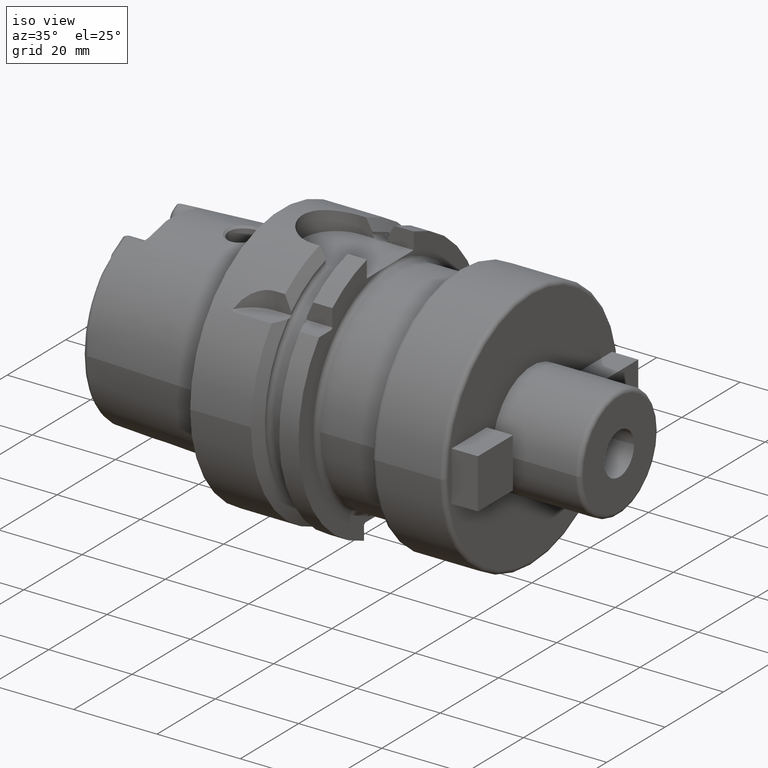
[diagram: clean part render]
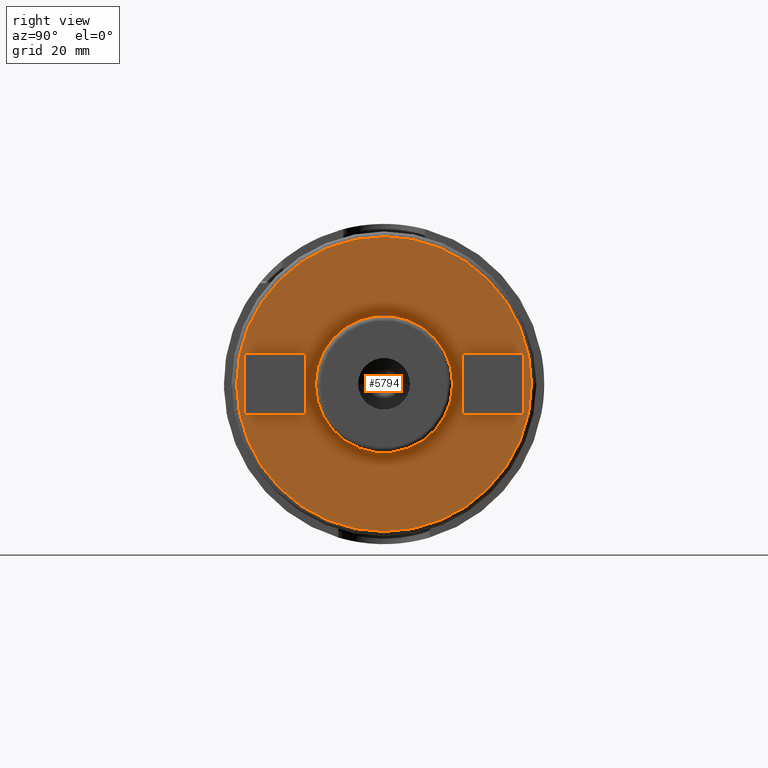
[diagram: tour spotlight — one face highlighted and labeled with its STEP entity id]
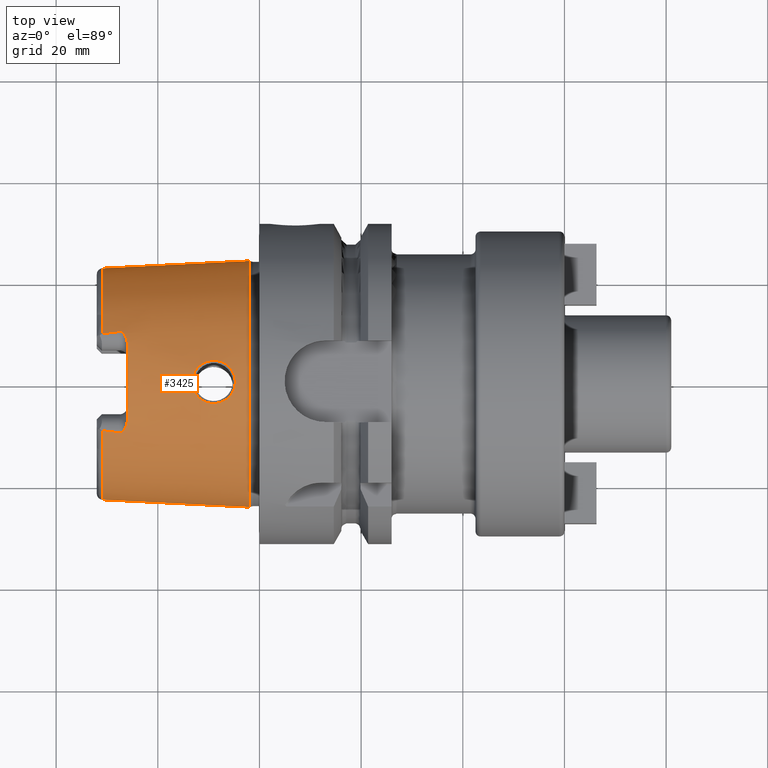
[diagram: tour spotlight — one face highlighted and labeled with its STEP entity id]
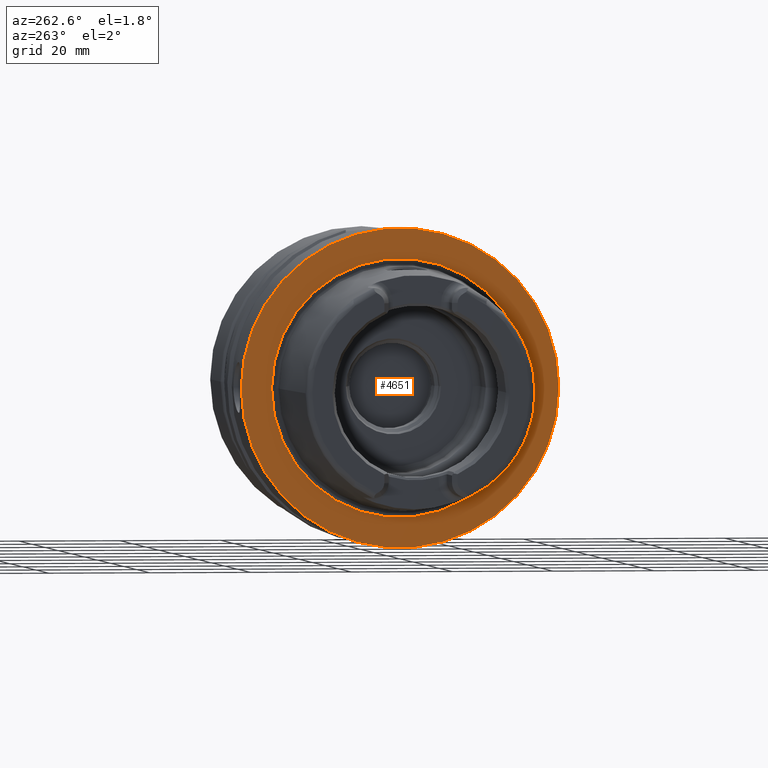
[diagram: tour spotlight — one face highlighted and labeled with its STEP entity id]
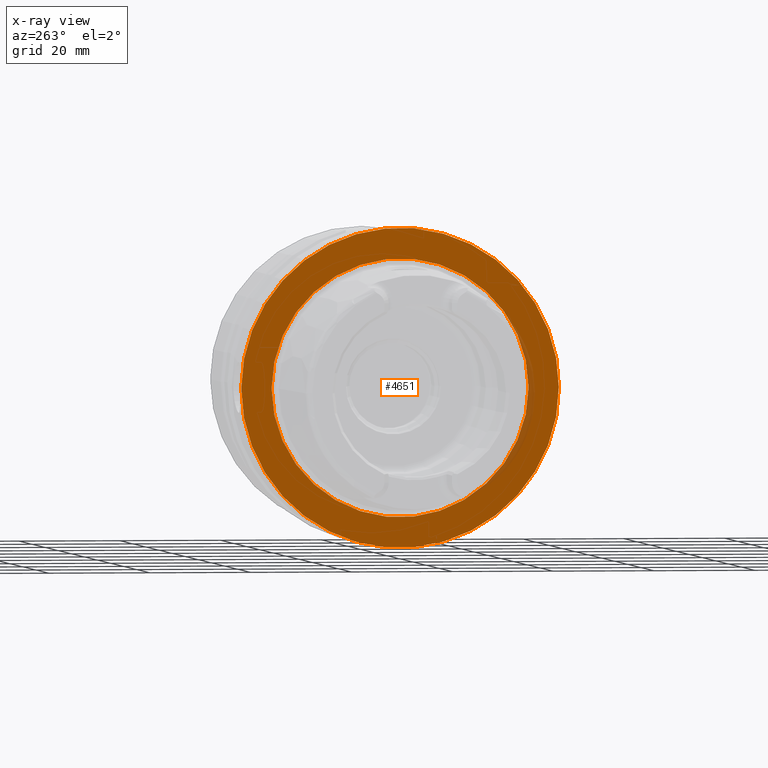
[diagram: x-ray of the same camera — body ghosted, this tour face saturated]
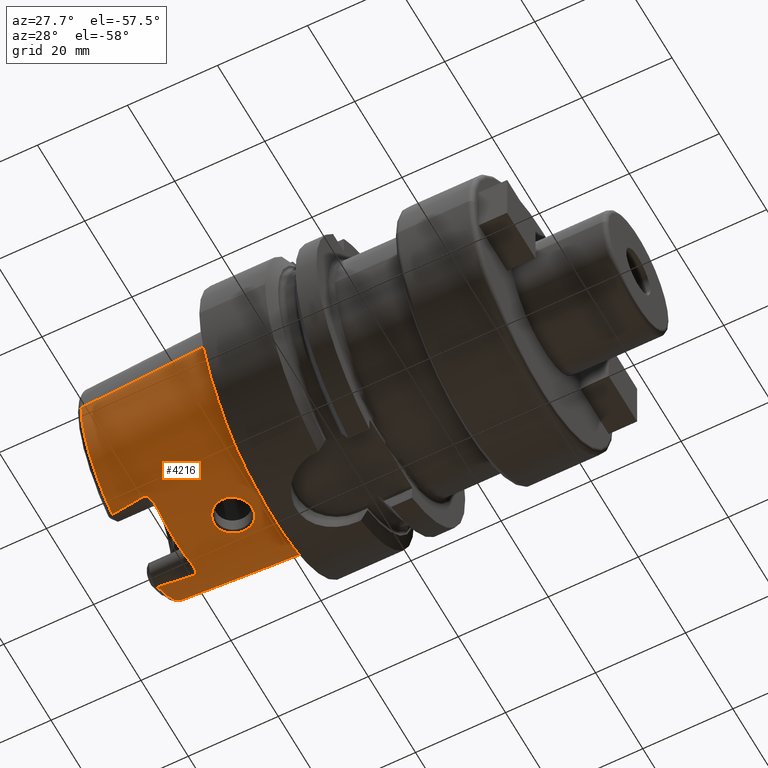
[diagram: tour spotlight — one face highlighted and labeled with its STEP entity id]
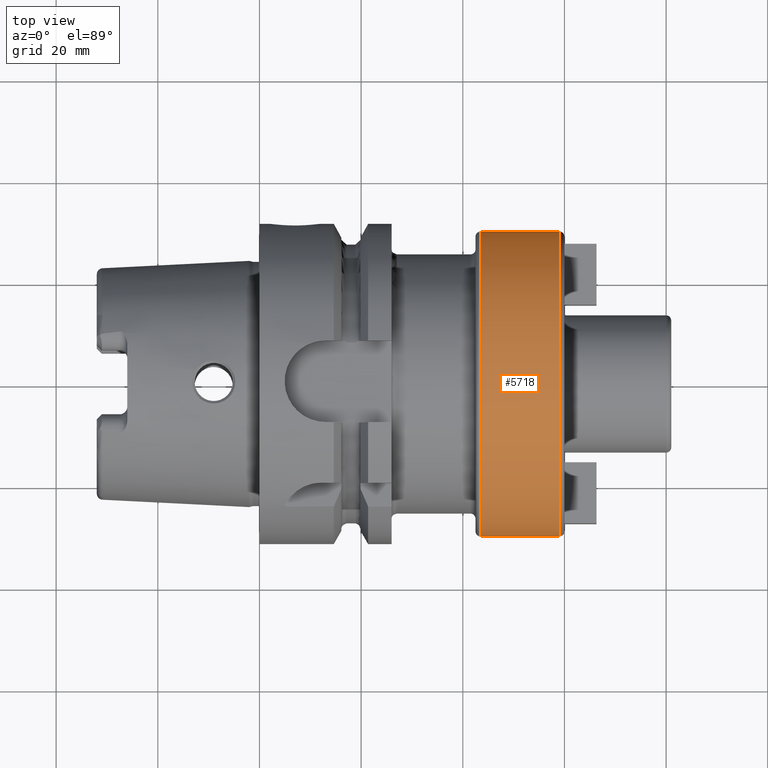
[diagram: tour spotlight — one face highlighted and labeled with its STEP entity id]
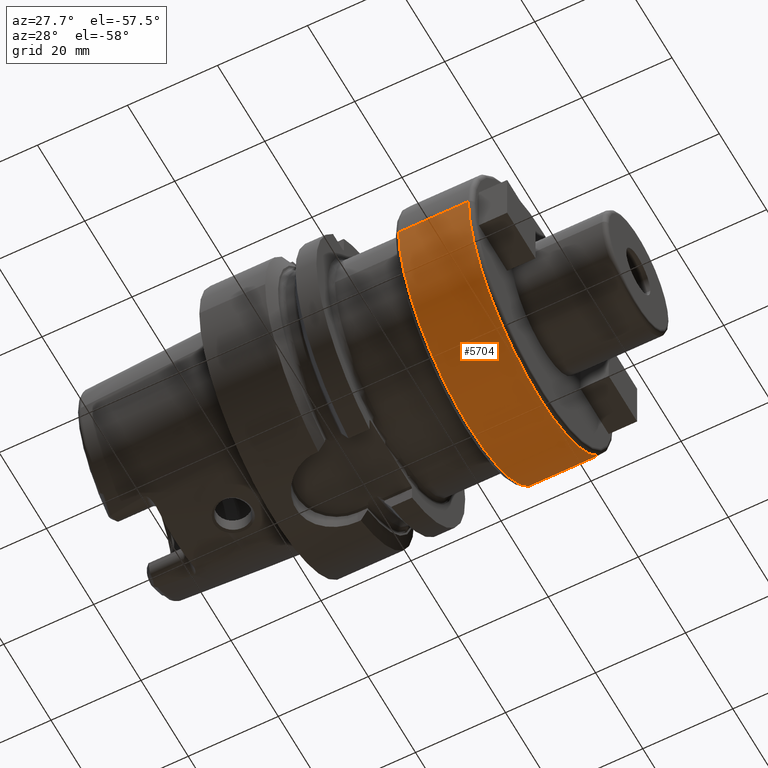
[diagram: tour spotlight — one face highlighted and labeled with its STEP entity id]
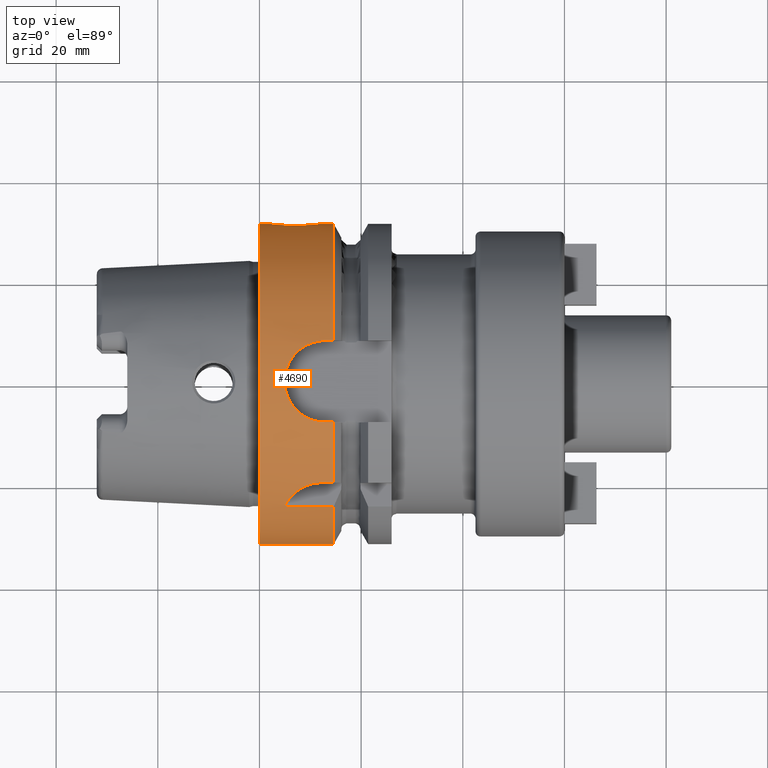
[diagram: tour spotlight — one face highlighted and labeled with its STEP entity id]
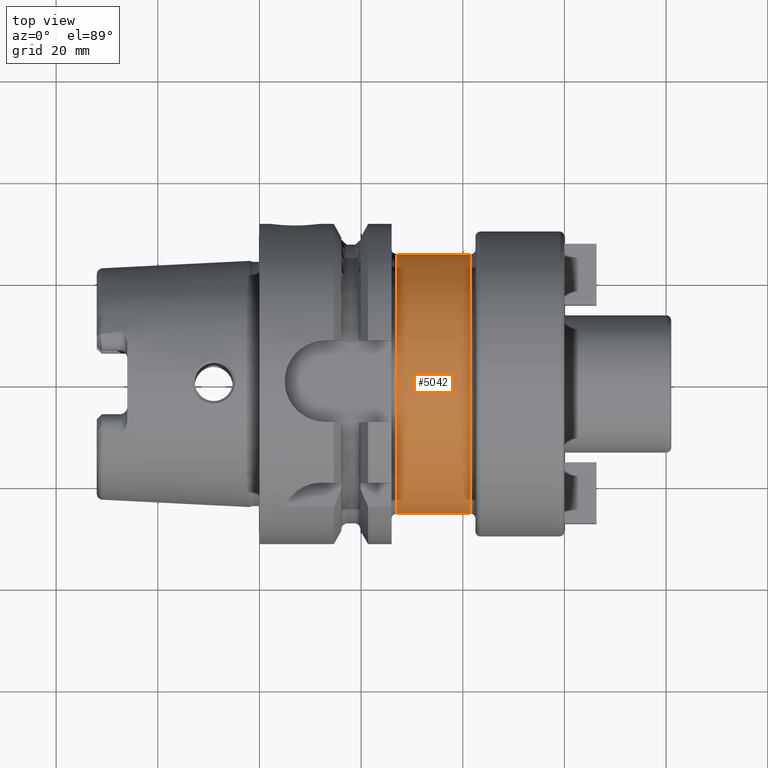
[diagram: tour spotlight — one face highlighted and labeled with its STEP entity id]
A machine part: a face-by-face anatomy tour. The part has 198 B-rep faces; the first image is the clean iso view, then the 8 largest visible faces are spotlighted one at a time (largest first), each with its STEP entity span.

Face 1 — right view, entity #5794. In plain terms, the highlighted planar face has unit normal (1, 0, 0).
Definition (entity closure, byte-faithful):
#2153=CARTESIAN_POINT('',(6.E1,0.E0,0.E0));
#2154=DIRECTION('',(1.E0,0.E0,0.E0));
#2155=DIRECTION('',(0.E0,1.E0,0.E0));
#2156=AXIS2_PLACEMENT_3D('',#2153,#2154,#2155);
#2158=CARTESIAN_POINT('',(6.E1,0.E0,0.E0));
#2159=DIRECTION('',(-1.E0,0.E0,0.E0));
#2160=DIRECTION('',(0.E0,1.E0,0.E0));
#2161=AXIS2_PLACEMENT_3D('',#2158,#2159,#2160);
#2163=CARTESIAN_POINT('',(6.E1,0.E0,0.E0));
#2164=DIRECTION('',(-1.E0,0.E0,0.E0));
#2165=DIRECTION('',(0.E0,1.E0,0.E0));
#2166=AXIS2_PLACEMENT_3D('',#2163,#2164,#2165);
#2168=CARTESIAN_POINT('',(6.E1,0.E0,0.E0));
#2169=DIRECTION('',(-1.E0,0.E0,0.E0));
#2170=DIRECTION('',(0.E0,-1.E0,0.E0));
#2171=AXIS2_PLACEMENT_3D('',#2168,#2169,#2170);
#2173=DIRECTION('',(0.E0,-1.E0,0.E0));
#2174=VECTOR('',#2173,1.2E1);
#2175=CARTESIAN_POINT('',(6.E1,2.75E1,6.E0));
#2176=LINE('',#2175,#2174);
#2177=DIRECTION('',(0.E0,0.E0,-1.E0));
#2178=VECTOR('',#2177,1.2E1);
#2179=CARTESIAN_POINT('',(6.E1,1.55E1,6.E0));
#2180=LINE('',#2179,#2178);
#2181=DIRECTION('',(0.E0,1.E0,0.E0));
#2182=VECTOR('',#2181,1.2E1);
#2183=CARTESIAN_POINT('',(6.E1,1.55E1,-6.E0));
#2184=LINE('',#2183,#2182);
#2185=DIRECTION('',(0.E0,0.E0,1.E0));
#2186=VECTOR('',#2185,1.2E1);
#2187=CARTESIAN_POINT('',(6.E1,2.75E1,-6.E0));
#2188=LINE('',#2187,#2186);
#2189=DIRECTION('',(0.E0,-1.E0,0.E0));
#2190=VECTOR('',#2189,1.2E1);
#2191=CARTESIAN_POINT('',(6.E1,-1.55E1,6.E0));
#2192=LINE('',#2191,#2190);
#2193=DIRECTION('',(0.E0,0.E0,-1.E0));
#2194=VECTOR('',#2193,1.2E1);
#2195=CARTESIAN_POINT('',(6.E1,-2.75E1,6.E0));
#2196=LINE('',#2195,#2194);
#2197=DIRECTION('',(0.E0,1.E0,0.E0));
#2198=VECTOR('',#2197,1.2E1);
#2199=CARTESIAN_POINT('',(6.E1,-2.75E1,-6.E0));
#2200=LINE('',#2199,#2198);
#2201=DIRECTION('',(0.E0,0.E0,1.E0));
#2202=VECTOR('',#2201,1.2E1);
#2203=CARTESIAN_POINT('',(6.E1,-1.55E1,-6.E0));
#2204=LINE('',#2203,#2202);
#3277=CARTESIAN_POINT('',(6.E1,1.35E1,0.E0));
#3278=CARTESIAN_POINT('',(6.E1,-1.35E1,0.E0));
#3279=VERTEX_POINT('',#3277);
#3280=VERTEX_POINT('',#3278);
#3285=CARTESIAN_POINT('',(6.E1,2.9E1,0.E0));
#3286=CARTESIAN_POINT('',(6.E1,-2.9E1,0.E0));
#3287=VERTEX_POINT('',#3285);
#3288=VERTEX_POINT('',#3286);
#3313=CARTESIAN_POINT('',(6.E1,2.75E1,6.E0));
#3314=CARTESIAN_POINT('',(6.E1,1.55E1,6.E0));
#3315=VERTEX_POINT('',#3313);
#3316=VERTEX_POINT('',#3314);
#3317=CARTESIAN_POINT('',(6.E1,1.55E1,-6.E0));
#3318=VERTEX_POINT('',#3317);
#3319=CARTESIAN_POINT('',(6.E1,2.75E1,-6.E0));
#3320=VERTEX_POINT('',#3319);
#3321=CARTESIAN_POINT('',(6.E1,-1.55E1,6.E0));
#3322=CARTESIAN_POINT('',(6.E1,-2.75E1,6.E0));
#3323=VERTEX_POINT('',#3321);
#3324=VERTEX_POINT('',#3322);
#3325=CARTESIAN_POINT('',(6.E1,-2.75E1,-6.E0));
#3326=VERTEX_POINT('',#3325);
#3327=CARTESIAN_POINT('',(6.E1,-1.55E1,-6.E0));
#3328=VERTEX_POINT('',#3327);
#5759=CARTESIAN_POINT('',(6.E1,0.E0,0.E0));
#5760=DIRECTION('',(1.E0,0.E0,0.E0));
#5761=DIRECTION('',(0.E0,-1.E0,0.E0));
#5762=AXIS2_PLACEMENT_3D('',#5759,#5760,#5761);
#5763=PLANE('',#5762);
#5764=ORIENTED_EDGE('',*,*,#5753,.T.);
#5765=ORIENTED_EDGE('',*,*,#5739,.T.);
#5766=EDGE_LOOP('',(#5764,#5765));
#5767=FACE_OUTER_BOUND('',#5766,.F.);
#5769=ORIENTED_EDGE('',*,*,#5768,.T.);
#5771=ORIENTED_EDGE('',*,*,#5770,.F.);
#5772=EDGE_LOOP('',(#5769,#5771));
#5773=FACE_BOUND('',#5772,.F.);
#5775=ORIENTED_EDGE('',*,*,#5774,.T.);
#5777=ORIENTED_EDGE('',*,*,#5776,.T.);
#5779=ORIENTED_EDGE('',*,*,#5778,.T.);
#5781=ORIENTED_EDGE('',*,*,#5780,.T.);
#5782=EDGE_LOOP('',(#5775,#5777,#5779,#5781));
#5783=FACE_BOUND('',#5782,.F.);
#5785=ORIENTED_EDGE('',*,*,#5784,.T.);
#5787=ORIENTED_EDGE('',*,*,#5786,.T.);
#5789=ORIENTED_EDGE('',*,*,#5788,.T.);
#5791=ORIENTED_EDGE('',*,*,#5790,.T.);
#5792=EDGE_LOOP('',(#5785,#5787,#5789,#5791));
#5793=FACE_BOUND('',#5792,.F.);
#5794=ADVANCED_FACE('',(#5767,#5773,#5783,#5793),#5763,.T.);
#2157=CIRCLE('',#2156,1.35E1);
#2162=CIRCLE('',#2161,1.35E1);
#2167=CIRCLE('',#2166,2.9E1);
#2172=CIRCLE('',#2171,2.9E1);
#5739=EDGE_CURVE('',#3288,#3287,#2172,.T.);
#5753=EDGE_CURVE('',#3287,#3288,#2167,.T.);
#5768=EDGE_CURVE('',#3279,#3280,#2157,.T.);
#5770=EDGE_CURVE('',#3279,#3280,#2162,.T.);
#5774=EDGE_CURVE('',#3315,#3316,#2176,.T.);
#5776=EDGE_CURVE('',#3316,#3318,#2180,.T.);
#5778=EDGE_CURVE('',#3318,#3320,#2184,.T.);
#5780=EDGE_CURVE('',#3320,#3315,#2188,.T.);
#5784=EDGE_CURVE('',#3323,#3324,#2192,.T.);
#5786=EDGE_CURVE('',#3324,#3326,#2196,.T.);
#5788=EDGE_CURVE('',#3326,#3328,#2200,.T.);
#5790=EDGE_CURVE('',#3328,#3323,#2204,.T.);

Face 2 — top view, entity #3425. In plain terms, the highlighted conical surface has half-angle 2.868 deg.
Definition (entity closure, byte-faithful):
#2=CARTESIAN_POINT('',(-3.086004306431E1,-9.562027931336E0,2.067E1));
#3=CARTESIAN_POINT('',(-3.049253157278E1,-9.605880711653E0,2.067E1));
#4=CARTESIAN_POINT('',(-2.975362396220E1,-9.693552821268E0,2.067E1));
#5=CARTESIAN_POINT('',(-2.863363692789E1,-9.824971306479E0,2.067E1));
#6=CARTESIAN_POINT('',(-2.787917629619E1,-9.912538799101E0,2.067E1));
#7=CARTESIAN_POINT('',(-2.75E1,-9.956312881929E0,2.067E1));
#9=CARTESIAN_POINT('',(-2.6E1,0.E0,0.E0));
#10=DIRECTION('',(1.E0,0.E0,0.E0));
#11=DIRECTION('',(0.E0,3.233021702202E-1,9.462957818415E-1));
#12=AXIS2_PLACEMENT_3D('',#9,#10,#11);
#14=CARTESIAN_POINT('',(-2.75E1,9.956312881929E0,2.067E1));
#15=CARTESIAN_POINT('',(-2.787916500946E1,9.912540102101E0,2.067E1));
#16=CARTESIAN_POINT('',(-2.863361059702E1,9.824974374327E0,2.067E1));
#17=CARTESIAN_POINT('',(-2.975359777716E1,9.693555915617E0,2.067E1));
#18=CARTESIAN_POINT('',(-3.049252035285E1,9.605882050456E0,2.067E1));
#19=CARTESIAN_POINT('',(-3.086004306431E1,9.562027931336E0,2.067E1));
#21=CARTESIAN_POINT('',(-2.E0,0.E0,0.E0));
#22=DIRECTION('',(1.E0,0.E0,0.E0));
#23=DIRECTION('',(0.E0,1.E0,0.E0));
#24=AXIS2_PLACEMENT_3D('',#21,#22,#23);
#26=CARTESIAN_POINT('',(-1.324941786023E1,-7.219004501044E-9,2.365679941218E1));
#27=CARTESIAN_POINT('',(-1.324962652857E1,2.128419836803E-1,2.365678895818E1));
#28=CARTESIAN_POINT('',(-1.321789572653E1,6.392154004916E-1,2.365279437370E1));
#29=CARTESIAN_POINT('',(-1.306583173353E1,1.295455377947E0,2.363353567605E1));
#30=CARTESIAN_POINT('',(-1.280774848226E1,1.924363159712E0,2.360322882883E1));
#31=CARTESIAN_POINT('',(-1.245682539685E1,2.498002640667E0,2.356658532007E1));
#32=CARTESIAN_POINT('',(-1.202590717647E1,3.003748276320E0,2.352875153285E1));
#33=CARTESIAN_POINT('',(-1.151587453193E1,3.440667161266E0,2.349418467003E1));
#34=CARTESIAN_POINT('',(-1.094488701051E1,3.790928519035E0,2.346872738592E1));
#35=CARTESIAN_POINT('',(-1.032606556195E1,4.047968073685E0,2.345686676513E1));
#36=CARTESIAN_POINT('',(-9.674487886290E0,4.205448144478E0,2.346208039452E1));
#37=CARTESIAN_POINT('',(-9.005382482159E0,4.259666064034E0,2.348629251751E1));
#38=CARTESIAN_POINT('',(-8.334406518885E0,4.208654245636E0,2.352972397238E1));
#39=CARTESIAN_POINT('',(-7.678583145358E0,4.052835118832E0,2.359064506703E1));
#40=CARTESIAN_POINT('',(-7.054746219975E0,3.795297178824E0,2.366546684138E1));
#41=CARTESIAN_POINT('',(-6.478384090661E0,3.441929617339E0,2.374909717224E1));
#42=CARTESIAN_POINT('',(-5.963720829785E0,2.998888105398E0,2.383556837714E1));
#43=CARTESIAN_POINT('',(-5.531697254110E0,2.487245477785E0,2.391660020727E1));
#44=CARTESIAN_POINT('',(-5.183622696567E0,1.910877761534E0,2.398748891792E1));
#45=CARTESIAN_POINT('',(-4.930520871648E0,1.285429316774E0,2.404215083473E1));
#46=CARTESIAN_POINT('',(-4.781592632661E0,6.352567731875E-1,2.407559904029E1));
#47=CARTESIAN_POINT('',(-4.750478792548E0,2.114683342023E-1,2.408258846670E1));
#48=CARTESIAN_POINT('',(-4.750585905229E0,7.197553449570E-9,2.408258310050E1));
#50=CARTESIAN_POINT('',(-4.750585905229E0,7.197553449570E-9,2.408258310050E1));
#51=CARTESIAN_POINT('',(-4.750395627959E0,-2.105069288240E-1,2.408259263313E1));
#52=CARTESIAN_POINT('',(-4.781309836194E0,-6.330630552620E-1,2.407566909301E1));
#53=CARTESIAN_POINT('',(-4.930068182376E0,-1.284334675678E0,2.404224817580E1));
#54=CARTESIAN_POINT('',(-5.183732271360E0,-1.911208248299E0,2.398746160179E1));
#55=CARTESIAN_POINT('',(-5.531554832014E0,-2.486758661206E0,2.391664059803E1));
#56=CARTESIAN_POINT('',(-5.960736101322E0,-2.995606004120E0,2.383611484308E1));
#57=CARTESIAN_POINT('',(-6.472413726219E0,-3.437431533938E0,2.375005151539E1));
#58=CARTESIAN_POINT('',(-7.047774921505E0,-3.791791568104E0,2.366638920783E1));
#59=CARTESIAN_POINT('',(-7.671990993959E0,-4.050736119112E0,2.359134441504E1));
#60=CARTESIAN_POINT('',(-8.327799970975E0,-4.207619640495E0,2.353024681340E1));
#61=CARTESIAN_POINT('',(-8.998662135271E0,-4.259680399888E0,2.348663216787E1));
#62=CARTESIAN_POINT('',(-9.668037445633E0,-4.206488328283E0,2.346222081393E1));
#63=CARTESIAN_POINT('',(-1.031990079178E1,-4.049961979503E0,2.345683302195E1));
#64=CARTESIAN_POINT('',(-1.093870323089E1,-3.794046262990E0,2.346853209808E1));
#65=CARTESIAN_POINT('',(-1.151051650685E1,-3.444658410973E0,2.349386945058E1));
#66=CARTESIAN_POINT('',(-1.202283712979E1,-3.007012911900E0,2.352850073603E1));
#67=CARTESIAN_POINT('',(-1.245609200384E1,-2.499248587590E0,2.356650362943E1));
#68=CARTESIAN_POINT('',(-1.280745559330E1,-1.924878595842E0,2.360319856514E1));
#69=CARTESIAN_POINT('',(-1.306526541006E1,-1.297000138509E0,2.363346880977E1));
#70=CARTESIAN_POINT('',(-1.321765204718E1,-6.412116938996E-1,2.365275767433E1));
#71=CARTESIAN_POINT('',(-1.324954460014E1,-2.136894906074E-1,2.365679306269E1));
#72=CARTESIAN_POINT('',(-1.324941786023E1,-7.219004501044E-9,2.365679941218E1));
#82=CARTESIAN_POINT('',(-2.651259296226E1,-9.27E0,2.104082891384E1));
#83=CARTESIAN_POINT('',(-2.655060528934E1,-9.340723960488E0,2.100758892059E1));
#84=CARTESIAN_POINT('',(-2.663038504623E1,-9.471838743333E0,2.094458948833E1));
#85=CARTESIAN_POINT('',(-2.676092291608E1,-9.637362323001E0,2.086163997968E1));
#86=CARTESIAN_POINT('',(-2.690131837165E1,-9.770899105642E0,2.079157611E1));
#87=CARTESIAN_POINT('',(-2.705226454993E1,-9.871852756963E0,2.073538687848E1));
#88=CARTESIAN_POINT('',(-2.720441776005E1,-9.934823835429E0,2.069678496112E1));
#89=CARTESIAN_POINT('',(-2.735189841416E1,-9.963277454574E0,2.067488149845E1));
#90=CARTESIAN_POINT('',(-2.745092740764E1,-9.961978077101E0,2.067E1));
#91=CARTESIAN_POINT('',(-2.75E1,-9.956312881929E0,2.067E1));
#93=CARTESIAN_POINT('',(-2.6E1,-7.441787718571E0,2.178189005860E1));
#94=CARTESIAN_POINT('',(-2.6E1,-7.574673232080E0,2.173648969253E1));
#95=CARTESIAN_POINT('',(-2.601813511197E1,-7.850865569829E0,2.163846841914E1));
#96=CARTESIAN_POINT('',(-2.610760114915E1,-8.297034966034E0,2.146679982993E1));
#97=CARTESIAN_POINT('',(-2.626559360892E1,-8.768529603152E0,2.127027062942E1));
#98=CARTESIAN_POINT('',(-2.642147165719E1,-9.100463955368E0,2.112051021193E1));
#99=CARTESIAN_POINT('',(-2.651259296226E1,-9.27E0,2.104082891384E1));
#185=CARTESIAN_POINT('',(-3.086004306431E1,0.E0,0.E0));
#186=DIRECTION('',(1.E0,0.E0,0.E0));
#187=DIRECTION('',(0.E0,1.E0,0.E0));
#188=AXIS2_PLACEMENT_3D('',#185,#186,#187);
#196=CARTESIAN_POINT('',(-3.086004306431E1,9.562027931336E0,2.067E1));
#261=CARTESIAN_POINT('',(-3.086004306431E1,0.E0,0.E0));
#262=DIRECTION('',(1.E0,0.E0,0.E0));
#263=DIRECTION('',(0.E0,-4.198553792210E-1,9.075910205259E-1));
#264=AXIS2_PLACEMENT_3D('',#261,#262,#263);
#457=CARTESIAN_POINT('',(-2.651259296226E1,9.27E0,2.104082891384E1));
#458=CARTESIAN_POINT('',(-2.642147038701E1,9.100461592138E0,2.112051132264E1));
#459=CARTESIAN_POINT('',(-2.626559126698E1,8.768524006326E0,2.127027307791E1));
#460=CARTESIAN_POINT('',(-2.610760038346E1,8.297031203136E0,2.146680127908E1));
#461=CARTESIAN_POINT('',(-2.601813556642E1,7.850867870131E0,2.163846753656E1));
#462=CARTESIAN_POINT('',(-2.6E1,7.574674433427E0,2.173648928209E1));
#463=CARTESIAN_POINT('',(-2.6E1,7.441787718571E0,2.178189005860E1));
#497=CARTESIAN_POINT('',(-2.75E1,9.956312881929E0,2.067E1));
#498=CARTESIAN_POINT('',(-2.745017853421E1,9.962064530943E0,2.067E1));
#499=CARTESIAN_POINT('',(-2.734992708669E1,9.963297705486E0,2.067498167063E1));
#500=CARTESIAN_POINT('',(-2.719976747307E1,9.933459927686E0,2.069769932459E1));
#501=CARTESIAN_POINT('',(-2.704939607884E1,9.870085988272E0,2.073638612523E1));
#502=CARTESIAN_POINT('',(-2.690048936387E1,9.770127639355E0,2.079198258623E1));
#503=CARTESIAN_POINT('',(-2.676049508867E1,9.636879759274E0,2.086188624037E1));
#504=CARTESIAN_POINT('',(-2.663016689843E1,9.471495400784E0,2.094475592633E1));
#505=CARTESIAN_POINT('',(-2.655053916050E1,9.340600924250E0,2.100764674716E1));
#506=CARTESIAN_POINT('',(-2.651259296226E1,9.27E0,2.104082891384E1));
#763=DIRECTION('',(-9.987474205320E-1,5.003588692862E-2,0.E0));
#764=VECTOR('',#763,2.889623789861E1);
#765=CARTESIAN_POINT('',(-2.E0,-2.422042414966E1,0.E0));
#766=LINE('',#765,#764);
#772=DIRECTION('',(-9.987474205320E-1,-5.003588692862E-2,0.E0));
#773=VECTOR('',#772,2.889623789861E1);
#774=CARTESIAN_POINT('',(-2.E0,2.422042414966E1,0.E0));
#775=LINE('',#774,#773);
#2873=CARTESIAN_POINT('',(-2.E0,2.422042414966E1,0.E0));
#2874=CARTESIAN_POINT('',(-2.E0,-2.422042414966E1,0.E0));
#2875=VERTEX_POINT('',#2873);
#2876=VERTEX_POINT('',#2874);
#2877=CARTESIAN_POINT('',(-3.086004306431E1,2.277457525750E1,0.E0));
#2878=VERTEX_POINT('',#2877);
#2879=CARTESIAN_POINT('',(-3.086004306431E1,-2.277457525750E1,0.E0));
#2880=VERTEX_POINT('',#2879);
#2918=VERTEX_POINT('',#196);
#2919=CARTESIAN_POINT('',(-3.086004306431E1,-9.562027931336E0,2.067E1));
#2920=VERTEX_POINT('',#2919);
#2930=CARTESIAN_POINT('',(-2.6E1,7.441787718571E0,2.178189005860E1));
#2931=VERTEX_POINT('',#2930);
#2934=CARTESIAN_POINT('',(-2.75E1,9.956312881929E0,2.067E1));
#2935=VERTEX_POINT('',#2934);
#2936=CARTESIAN_POINT('',(-2.6E1,-7.441787718571E0,2.178189005860E1));
#2937=VERTEX_POINT('',#2936);
#2940=CARTESIAN_POINT('',(-2.75E1,-9.956312881929E0,2.067E1));
#2941=VERTEX_POINT('',#2940);
#2942=VERTEX_POINT('',#506);
#2943=VERTEX_POINT('',#82);
#3084=VERTEX_POINT('',#26);
#3085=VERTEX_POINT('',#48);
#3388=CARTESIAN_POINT('',(-1.643002153216E1,0.E0,0.E0));
#3389=DIRECTION('',(1.E0,0.E0,0.E0));
#3390=DIRECTION('',(0.E0,-1.E0,0.E0));
#3391=AXIS2_PLACEMENT_3D('',#3388,#3389,#3390);
#3392=CONICAL_SURFACE('',#3391,2.349749970358E1,2.868042729042E0);
#3394=ORIENTED_EDGE('',*,*,#3393,.T.);
#3396=ORIENTED_EDGE('',*,*,#3395,.F.);
#3398=ORIENTED_EDGE('',*,*,#3397,.F.);
#3400=ORIENTED_EDGE('',*,*,#3399,.F.);
#3402=ORIENTED_EDGE('',*,*,#3401,.F.);
#3404=ORIENTED_EDGE('',*,*,#3403,.F.);
#3406=ORIENTED_EDGE('',*,*,#3405,.T.);
#3408=ORIENTED_EDGE('',*,*,#3407,.F.);
#3410=ORIENTED_EDGE('',*,*,#3409,.F.);
#3412=ORIENTED_EDGE('',*,*,#3411,.T.);
#3414=ORIENTED_EDGE('',*,*,#3413,.T.);
#3416=ORIENTED_EDGE('',*,*,#3415,.F.);
#3417=EDGE_LOOP('',(#3394,#3396,#3398,#3400,#3402,#3404,#3406,#3408,#3410,#3412,
#3414,#3416));
#3418=FACE_OUTER_BOUND('',#3417,.F.);
#3420=ORIENTED_EDGE('',*,*,#3419,.F.);
#3422=ORIENTED_EDGE('',*,*,#3421,.F.);
#3423=EDGE_LOOP('',(#3420,#3422));
#3424=FACE_BOUND('',#3423,.F.);
#3425=ADVANCED_FACE('',(#3418,#3424),#3392,.T.);
#8=B_SPLINE_CURVE_WITH_KNOTS('',3,(#2,#3,#4,#5,#6,#7),.UNSPECIFIED.,.F.,.F.,(4,
1,1,4),(0.E0,3.333333333333E-1,6.666666666667E-1,1.E0),.UNSPECIFIED.);
#13=CIRCLE('',#12,2.301805680272E1);
#20=B_SPLINE_CURVE_WITH_KNOTS('',3,(#14,#15,#16,#17,#18,#19),.UNSPECIFIED.,.F.,
.F.,(4,1,1,4),(0.E0,3.333333333333E-1,6.666666666667E-1,1.E0),.UNSPECIFIED.);
#25=CIRCLE('',#24,2.422042414966E1);
#49=B_SPLINE_CURVE_WITH_KNOTS('',3,(#26,#27,#28,#29,#30,#31,#32,#33,#34,#35,#36,
#37,#38,#39,#40,#41,#42,#43,#44,#45,#46,#47,#48),.UNSPECIFIED.,.F.,.F.,(4,1,1,1,
1,1,1,1,1,1,1,1,1,1,1,1,1,1,1,1,4),(0.E0,5.E-2,1.E-1,1.5E-1,2.E-1,2.5E-1,3.E-1,
3.5E-1,4.E-1,4.5E-1,5.E-1,5.5E-1,6.E-1,6.5E-1,7.E-1,7.5E-1,8.E-1,8.5E-1,9.E-1,
9.5E-1,1.E0),.UNSPECIFIED.);
#73=B_SPLINE_CURVE_WITH_KNOTS('',3,(#50,#51,#52,#53,#54,#55,#56,#57,#58,#59,#60,
#61,#62,#63,#64,#65,#66,#67,#68,#69,#70,#71,#72),.UNSPECIFIED.,.F.,.F.,(4,1,1,1,
1,1,1,1,1,1,1,1,1,1,1,1,1,1,1,1,4),(0.E0,5.E-2,1.E-1,1.5E-1,2.E-1,2.5E-1,3.E-1,
3.5E-1,4.E-1,4.5E-1,5.E-1,5.5E-1,6.E-1,6.5E-1,7.E-1,7.5E-1,8.E-1,8.5E-1,9.E-1,
9.5E-1,1.E0),.UNSPECIFIED.);
#92=B_SPLINE_CURVE_WITH_KNOTS('',3,(#82,#83,#84,#85,#86,#87,#88,#89,#90,#91),
.UNSPECIFIED.,.F.,.F.,(4,1,1,1,1,1,1,4),(0.E0,1.428571428571E-1,
2.857142857143E-1,4.285714285714E-1,5.714285714286E-1,7.142857142857E-1,
8.571428571429E-1,1.E0),.UNSPECIFIED.);
#100=B_SPLINE_CURVE_WITH_KNOTS('',3,(#93,#94,#95,#96,#97,#98,#99),.UNSPECIFIED.,
.F.,.F.,(4,1,1,1,4),(0.E0,2.5E-1,5.E-1,7.5E-1,1.E0),.UNSPECIFIED.);
#189=CIRCLE('',#188,2.277457525750E1);
#265=CIRCLE('',#264,2.277457525750E1);
#464=B_SPLINE_CURVE_WITH_KNOTS('',3,(#457,#458,#459,#460,#461,#462,#463),
.UNSPECIFIED.,.F.,.F.,(4,1,1,1,4),(0.E0,2.5E-1,5.E-1,7.5E-1,1.E0),
.UNSPECIFIED.);
#507=B_SPLINE_CURVE_WITH_KNOTS('',3,(#497,#498,#499,#500,#501,#502,#503,#504,
#505,#506),.UNSPECIFIED.,.F.,.F.,(4,1,1,1,1,1,1,4),(0.E0,1.428571428571E-1,
2.857142857143E-1,4.285714285714E-1,5.714285714286E-1,7.142857142857E-1,
8.571428571429E-1,1.E0),.UNSPECIFIED.);
#3393=EDGE_CURVE('',#2920,#2941,#8,.T.);
#3395=EDGE_CURVE('',#2943,#2941,#92,.T.);
#3397=EDGE_CURVE('',#2937,#2943,#100,.T.);
#3399=EDGE_CURVE('',#2931,#2937,#13,.T.);
#3401=EDGE_CURVE('',#2942,#2931,#464,.T.);
#3403=EDGE_CURVE('',#2935,#2942,#507,.T.);
#3405=EDGE_CURVE('',#2935,#2918,#20,.T.);
#3407=EDGE_CURVE('',#2878,#2918,#189,.T.);
#3409=EDGE_CURVE('',#2875,#2878,#775,.T.);
#3411=EDGE_CURVE('',#2875,#2876,#25,.T.);
#3413=EDGE_CURVE('',#2876,#2880,#766,.T.);
#3415=EDGE_CURVE('',#2920,#2880,#265,.T.);
#3419=EDGE_CURVE('',#3084,#3085,#49,.T.);
#3421=EDGE_CURVE('',#3085,#3084,#73,.T.);

Face 3 — auxiliary view, entity #4651. An x-ray twin of the same camera follows (body ghosted, this face saturated) — the face is partly hidden behind the body. In plain terms, the highlighted planar face has unit normal (1, 0, 0).
Definition (entity closure, byte-faithful):
#1068=CARTESIAN_POINT('',(-1.421085471520E-14,0.E0,0.E0));
#1069=DIRECTION('',(1.E0,0.E0,0.E0));
#1070=DIRECTION('',(0.E0,1.E0,0.E0));
#1071=AXIS2_PLACEMENT_3D('',#1068,#1069,#1070);
#1073=CARTESIAN_POINT('',(-1.421085471520E-14,0.E0,0.E0));
#1074=DIRECTION('',(-1.E0,0.E0,0.E0));
#1075=DIRECTION('',(0.E0,1.E0,0.E0));
#1076=AXIS2_PLACEMENT_3D('',#1073,#1074,#1075);
#1078=CARTESIAN_POINT('',(0.E0,0.E0,0.E0));
#1079=DIRECTION('',(-1.E0,0.E0,0.E0));
#1080=DIRECTION('',(0.E0,-1.E0,0.E0));
#1081=AXIS2_PLACEMENT_3D('',#1078,#1079,#1080);
#1083=CARTESIAN_POINT('',(0.E0,0.E0,0.E0));
#1084=DIRECTION('',(-1.E0,0.E0,0.E0));
#1085=DIRECTION('',(0.E0,1.E0,0.E0));
#1086=AXIS2_PLACEMENT_3D('',#1083,#1084,#1085);
#2853=CARTESIAN_POINT('',(-1.421085471520E-14,3.15E1,0.E0));
#2854=CARTESIAN_POINT('',(-1.421085471520E-14,-3.15E1,0.E0));
#2855=VERTEX_POINT('',#2853);
#2856=VERTEX_POINT('',#2854);
#2881=CARTESIAN_POINT('',(0.E0,-2.549042414966E1,0.E0));
#2882=VERTEX_POINT('',#2881);
#2883=CARTESIAN_POINT('',(0.E0,2.549042414966E1,0.E0));
#2884=VERTEX_POINT('',#2883);
#4636=CARTESIAN_POINT('',(0.E0,0.E0,0.E0));
#4637=DIRECTION('',(1.E0,0.E0,0.E0));
#4638=DIRECTION('',(0.E0,-1.E0,0.E0));
#4639=AXIS2_PLACEMENT_3D('',#4636,#4637,#4638);
#4640=PLANE('',#4639);
#4642=ORIENTED_EDGE('',*,*,#4641,.T.);
#4644=ORIENTED_EDGE('',*,*,#4643,.F.);
#4645=EDGE_LOOP('',(#4642,#4644));
#4646=FACE_OUTER_BOUND('',#4645,.F.);
#4647=ORIENTED_EDGE('',*,*,#4631,.T.);
#4648=ORIENTED_EDGE('',*,*,#4615,.T.);
#4649=EDGE_LOOP('',(#4647,#4648));
#4650=FACE_BOUND('',#4649,.F.);
#4651=ADVANCED_FACE('',(#4646,#4650),#4640,.F.);
#1072=CIRCLE('',#1071,3.15E1);
#1077=CIRCLE('',#1076,3.15E1);
#1082=CIRCLE('',#1081,2.549042414966E1);
#1087=CIRCLE('',#1086,2.549042414966E1);
#4615=EDGE_CURVE('',#2884,#2882,#1087,.T.);
#4631=EDGE_CURVE('',#2882,#2884,#1082,.T.);
#4641=EDGE_CURVE('',#2855,#2856,#1072,.T.);
#4643=EDGE_CURVE('',#2855,#2856,#1077,.T.);

Face 4 — auxiliary view, entity #4216. In plain terms, the highlighted conical surface has half-angle 2.868 deg.
Definition (entity closure, byte-faithful):
#172=CARTESIAN_POINT('',(-3.086004306431E1,9.562027931336E0,-2.067E1));
#180=CARTESIAN_POINT('',(-3.086004306431E1,0.E0,0.E0));
#181=DIRECTION('',(-1.E0,0.E0,0.E0));
#182=DIRECTION('',(0.E0,1.E0,0.E0));
#183=AXIS2_PLACEMENT_3D('',#180,#181,#182);
#266=CARTESIAN_POINT('',(-3.086004306431E1,0.E0,0.E0));
#267=DIRECTION('',(-1.E0,0.E0,0.E0));
#268=DIRECTION('',(0.E0,-4.198553792210E-1,-9.075910205259E-1));
#269=AXIS2_PLACEMENT_3D('',#266,#267,#268);
#715=CARTESIAN_POINT('',(-2.35E1,-1.040978349090E1,-2.067E1));
#716=CARTESIAN_POINT('',(-2.344355022851E1,-1.041607090076E1,-2.067E1));
#717=CARTESIAN_POINT('',(-2.332956993861E1,-1.041630964332E1,
-2.067627649687E1));
#718=CARTESIAN_POINT('',(-2.315431779142E1,-1.037517685704E1,
-2.070680447798E1));
#719=CARTESIAN_POINT('',(-2.298610382819E1,-1.029332142770E1,
-2.075709446100E1));
#720=CARTESIAN_POINT('',(-2.282168004898E1,-1.016791062235E1,
-2.082809580409E1));
#721=CARTESIAN_POINT('',(-2.266724538325E1,-9.999284585470E0,
-2.091827708343E1));
#722=CARTESIAN_POINT('',(-2.252949651780E1,-9.795860386621E0,
-2.102205159226E1));
#723=CARTESIAN_POINT('',(-2.240609239614E1,-9.556317791147E0,
-2.113897791639E1));
#724=CARTESIAN_POINT('',(-2.233295118151E1,-9.369771312934E0,
-2.122596447282E1));
#725=CARTESIAN_POINT('',(-2.229902715702E1,-9.27E0,-2.127129858661E1));
#732=CARTESIAN_POINT('',(-2.229902715702E1,-9.27E0,-2.127129858661E1));
#733=CARTESIAN_POINT('',(-2.223399395074E1,-9.078735889296E0,
-2.135820522042E1));
#734=CARTESIAN_POINT('',(-2.212138063131E1,-8.709703982970E0,
-2.151897497246E1));
#735=CARTESIAN_POINT('',(-2.202143095510E1,-8.195867731278E0,
-2.172483116732E1));
#736=CARTESIAN_POINT('',(-2.2E1,-7.876905772307E0,-2.184209600703E1));
#737=CARTESIAN_POINT('',(-2.2E1,-7.723914364163E0,-2.189606426911E1));
#744=CARTESIAN_POINT('',(-3.086004306431E1,9.562027931336E0,-2.067E1));
#745=CARTESIAN_POINT('',(-3.006933576531E1,9.656377942908E0,-2.067E1));
#746=CARTESIAN_POINT('',(-2.846987211493E1,9.844931102331E0,-2.067E1));
#747=CARTESIAN_POINT('',(-2.601704943476E1,1.012739619931E1,-2.067E1));
#748=CARTESIAN_POINT('',(-2.434508424921E1,1.031565749353E1,-2.067E1));
#749=CARTESIAN_POINT('',(-2.35E1,1.040978349090E1,-2.067E1));
#751=CARTESIAN_POINT('',(-2.2E1,0.E0,0.E0));
#752=DIRECTION('',(1.E0,0.E0,0.E0));
#753=DIRECTION('',(0.E0,-3.326627708379E-1,-9.430458530201E-1));
#754=AXIS2_PLACEMENT_3D('',#751,#752,#753);
#756=CARTESIAN_POINT('',(-2.35E1,-1.040978349090E1,-2.067E1));
#757=CARTESIAN_POINT('',(-2.434499363207E1,-1.031566758652E1,-2.067E1));
#758=CARTESIAN_POINT('',(-2.601683809497E1,-1.012742018211E1,-2.067E1));
#759=CARTESIAN_POINT('',(-2.846966522954E1,-9.844955281726E0,-2.067E1));
#760=CARTESIAN_POINT('',(-3.006924714753E1,-9.656388517097E0,-2.067E1));
#761=CARTESIAN_POINT('',(-3.086004306431E1,-9.562027931336E0,-2.067E1));
#763=DIRECTION('',(-9.987474205320E-1,5.003588692862E-2,0.E0));
#764=VECTOR('',#763,2.889623789861E1);
#765=CARTESIAN_POINT('',(-2.E0,-2.422042414966E1,0.E0));
#766=LINE('',#765,#764);
#767=CARTESIAN_POINT('',(-2.E0,0.E0,0.E0));
#768=DIRECTION('',(1.E0,0.E0,0.E0));
#769=DIRECTION('',(0.E0,-1.E0,0.E0));
#770=AXIS2_PLACEMENT_3D('',#767,#768,#769);
#772=DIRECTION('',(-9.987474205320E-1,-5.003588692862E-2,0.E0));
#773=VECTOR('',#772,2.889623789861E1);
#774=CARTESIAN_POINT('',(-2.E0,2.422042414966E1,0.E0));
#775=LINE('',#774,#773);
#776=CARTESIAN_POINT('',(-4.750586214018E0,5.673461659763E-9,
-2.408258339423E1));
#777=CARTESIAN_POINT('',(-4.750477437961E0,2.111411076152E-1,
-2.408258884376E1));
#778=CARTESIAN_POINT('',(-4.781495656806E0,6.343409338442E-1,
-2.407562144168E1));
#779=CARTESIAN_POINT('',(-4.930078657106E0,1.283914855647E0,-2.404224907910E1));
#780=CARTESIAN_POINT('',(-5.182634392381E0,1.908800454949E0,-2.398769888200E1));
#781=CARTESIAN_POINT('',(-5.529831450162E0,2.484539069761E0,-2.391697022480E1));
#782=CARTESIAN_POINT('',(-5.960551469368E0,2.995586150016E0,-2.383614077825E1));
#783=CARTESIAN_POINT('',(-6.473793439058E0,3.438507792172E0,-2.374982588457E1));
#784=CARTESIAN_POINT('',(-7.048787066123E0,3.792204015972E0,-2.366626747645E1));
#785=CARTESIAN_POINT('',(-7.671452269175E0,4.050490920343E0,-2.359141310307E1));
#786=CARTESIAN_POINT('',(-8.326498075054E0,4.207389863949E0,-2.353035449331E1));
#787=CARTESIAN_POINT('',(-8.996688113385E0,4.259622037115E0,-2.348674331493E1));
#788=CARTESIAN_POINT('',(-9.664449704733E0,4.206963769363E0,-2.346231724919E1));
#789=CARTESIAN_POINT('',(-1.031524077611E1,4.051442761029E0,-2.345681057565E1));
#790=CARTESIAN_POINT('',(-1.093485325951E1,3.796098039719E0,-2.346839797168E1));
#791=CARTESIAN_POINT('',(-1.150677686976E1,3.447081430360E0,-2.349368587605E1));
#792=CARTESIAN_POINT('',(-1.201610511114E1,3.013688514077E0,-2.352797212386E1));
#793=CARTESIAN_POINT('',(-1.245275273991E1,2.504280742997E0,-2.356616658718E1));
#794=CARTESIAN_POINT('',(-1.280634613041E1,1.927107192660E0,-2.360307496745E1));
#795=CARTESIAN_POINT('',(-1.306351718265E1,1.301776136825E0,-2.363325793045E1));
#796=CARTESIAN_POINT('',(-1.321667495617E1,6.483699009348E-1,
-2.365261938940E1));
#797=CARTESIAN_POINT('',(-1.324953338827E1,2.167159282651E-1,
-2.365680321669E1));
#798=CARTESIAN_POINT('',(-1.324940828071E1,6.149879737228E-9,
-2.365680948441E1));
#800=CARTESIAN_POINT('',(-1.324940828071E1,6.149879737228E-9,
-2.365680948441E1));
#801=CARTESIAN_POINT('',(-1.324953102801E1,-2.137481481882E-1,
-2.365680333493E1));
#802=CARTESIAN_POINT('',(-1.321763433537E1,-6.412975014817E-1,
-2.365274945467E1));
#803=CARTESIAN_POINT('',(-1.306535183772E1,-1.296633810944E0,
-2.363348136753E1));
#804=CARTESIAN_POINT('',(-1.280777805154E1,-1.924231879999E0,
-2.360323471178E1));
#805=CARTESIAN_POINT('',(-1.245640925213E1,-2.498853587660E0,
-2.356653312143E1));
#806=CARTESIAN_POINT('',(-1.202279775894E1,-3.007095564138E0,
-2.352849478770E1));
#807=CARTESIAN_POINT('',(-1.151012912941E1,-3.444950000041E0,
-2.349384632376E1));
#808=CARTESIAN_POINT('',(-1.093833543731E1,-3.794219313343E0,
-2.346852201482E1));
#809=CARTESIAN_POINT('',(-1.031975853695E1,-4.049996047184E0,
-2.345683414568E1));
#810=CARTESIAN_POINT('',(-9.668027880621E0,-4.206485188960E0,
-2.346222186835E1));
#811=CARTESIAN_POINT('',(-8.998732245580E0,-4.259676561364E0,
-2.348662929012E1));
#812=CARTESIAN_POINT('',(-8.327946517995E0,-4.207637743620E0,
-2.353023608986E1));
#813=CARTESIAN_POINT('',(-7.672280726344E0,-4.050816496641E0,
-2.359131552533E1));
#814=CARTESIAN_POINT('',(-7.048298445734E0,-3.792045808672E0,
-2.366632099982E1));
#815=CARTESIAN_POINT('',(-6.472887987830E0,-3.437795786313E0,
-2.374997505426E1));
#816=CARTESIAN_POINT('',(-5.960766318899E0,-2.995689730409E0,
-2.383610614678E1));
#817=CARTESIAN_POINT('',(-5.531187494687E0,-2.486290041474E0,
-2.391671147691E1));
#818=CARTESIAN_POINT('',(-5.183401261358E0,-1.910526594455E0,
-2.398753185570E1));
#819=CARTESIAN_POINT('',(-4.929997199649E0,-1.284003067748E0,
-2.404226458263E1));
#820=CARTESIAN_POINT('',(-4.781340780308E0,-6.332209723674E-1,
-2.407566103624E1));
#821=CARTESIAN_POINT('',(-4.750402434471E0,-2.105981632370E-1,
-2.408259260134E1));
#822=CARTESIAN_POINT('',(-4.750586214018E0,5.673461659763E-9,
-2.408258339423E1));
#832=CARTESIAN_POINT('',(-2.229902715702E1,9.27E0,-2.127129858661E1));
#833=CARTESIAN_POINT('',(-2.233311157770E1,9.370243041714E0,-2.122575012858E1));
#834=CARTESIAN_POINT('',(-2.240658425841E1,9.557497215840E0,-2.113842140416E1));
#835=CARTESIAN_POINT('',(-2.253041527230E1,9.797438074146E0,-2.102126542838E1));
#836=CARTESIAN_POINT('',(-2.266830373788E1,1.000064778809E1,-2.091756656395E1));
#837=CARTESIAN_POINT('',(-2.282373330426E1,1.017005110462E1,-2.082694270310E1));
#838=CARTESIAN_POINT('',(-2.299261366970E1,1.029790438197E1,-2.075446014923E1));
#839=CARTESIAN_POINT('',(-2.316533457542E1,1.037882348161E1,-2.070435505978E1));
#840=CARTESIAN_POINT('',(-2.333269177476E1,1.041609135758E1,-2.067621009348E1));
#841=CARTESIAN_POINT('',(-2.344467268621E1,1.041594588074E1,-2.067E1));
#842=CARTESIAN_POINT('',(-2.35E1,1.040978349090E1,-2.067E1));
#844=CARTESIAN_POINT('',(-2.2E1,7.723914364163E0,-2.189606426911E1));
#845=CARTESIAN_POINT('',(-2.2E1,7.876901135824E0,-2.184209764257E1));
#846=CARTESIAN_POINT('',(-2.202143124879E1,8.195856320393E0,-2.172483505793E1));
#847=CARTESIAN_POINT('',(-2.212136508173E1,8.709641843939E0,-2.151900085185E1));
#848=CARTESIAN_POINT('',(-2.223398514363E1,9.078709987396E0,-2.135821698973E1));
#849=CARTESIAN_POINT('',(-2.229902715702E1,9.27E0,-2.127129858661E1));
#2873=CARTESIAN_POINT('',(-2.E0,2.422042414966E1,0.E0));
#2874=CARTESIAN_POINT('',(-2.E0,-2.422042414966E1,0.E0));
#2875=VERTEX_POINT('',#2873);
#2876=VERTEX_POINT('',#2874);
#2877=CARTESIAN_POINT('',(-3.086004306431E1,2.277457525750E1,0.E0));
#2878=VERTEX_POINT('',#2877);
#2879=CARTESIAN_POINT('',(-3.086004306431E1,-2.277457525750E1,0.E0));
#2880=VERTEX_POINT('',#2879);
#2998=VERTEX_POINT('',#172);
#3000=CARTESIAN_POINT('',(-3.086004306431E1,-9.562027931336E0,-2.067E1));
#3001=VERTEX_POINT('',#3000);
#3004=CARTESIAN_POINT('',(-2.229902715702E1,-9.27E0,-2.127129858661E1));
#3006=VERTEX_POINT('',#3004);
#3007=VERTEX_POINT('',#737);
#3008=VERTEX_POINT('',#844);
#3009=VERTEX_POINT('',#849);
#3020=CARTESIAN_POINT('',(-2.35E1,-1.040978349090E1,-2.067E1));
#3021=VERTEX_POINT('',#3020);
#3022=CARTESIAN_POINT('',(-2.35E1,1.040978349090E1,-2.067E1));
#3023=VERTEX_POINT('',#3022);
#3088=VERTEX_POINT('',#776);
#3089=VERTEX_POINT('',#798);
#4186=CARTESIAN_POINT('',(-1.643002153216E1,0.E0,0.E0));
#4187=DIRECTION('',(1.E0,0.E0,0.E0));
#4188=DIRECTION('',(0.E0,-1.E0,0.E0));
#4189=AXIS2_PLACEMENT_3D('',#4186,#4187,#4188);
#4190=CONICAL_SURFACE('',#4189,2.349749970358E1,2.868042729042E0);
#4192=ORIENTED_EDGE('',*,*,#4191,.T.);
#4194=ORIENTED_EDGE('',*,*,#4193,.F.);
#4196=ORIENTED_EDGE('',*,*,#4195,.F.);
#4198=ORIENTED_EDGE('',*,*,#4197,.F.);
#4199=ORIENTED_EDGE('',*,*,#4176,.F.);
#4200=ORIENTED_EDGE('',*,*,#4165,.F.);
#4201=ORIENTED_EDGE('',*,*,#4152,.T.);
#4202=ORIENTED_EDGE('',*,*,#3555,.T.);
#4203=ORIENTED_EDGE('',*,*,#3413,.F.);
#4205=ORIENTED_EDGE('',*,*,#4204,.T.);
#4206=ORIENTED_EDGE('',*,*,#3409,.T.);
#4207=ORIENTED_EDGE('',*,*,#3527,.T.);
#4208=EDGE_LOOP('',(#4192,#4194,#4196,#4198,#4199,#4200,#4201,#4202,#4203,#4205,
#4206,#4207));
#4209=FACE_OUTER_BOUND('',#4208,.F.);
#4211=ORIENTED_EDGE('',*,*,#4210,.F.);
#4213=ORIENTED_EDGE('',*,*,#4212,.F.);
#4214=EDGE_LOOP('',(#4211,#4213));
#4215=FACE_BOUND('',#4214,.F.);
#4216=ADVANCED_FACE('',(#4209,#4215),#4190,.T.);
#184=CIRCLE('',#183,2.277457525750E1);
#270=CIRCLE('',#269,2.277457525750E1);
#726=B_SPLINE_CURVE_WITH_KNOTS('',3,(#715,#716,#717,#718,#719,#720,#721,#722,
#723,#724,#725),.UNSPECIFIED.,.F.,.F.,(4,1,1,1,1,1,1,1,4),(0.E0,1.25E-1,2.5E-1,
3.75E-1,5.E-1,6.25E-1,7.5E-1,8.75E-1,1.E0),.UNSPECIFIED.);
#738=B_SPLINE_CURVE_WITH_KNOTS('',3,(#732,#733,#734,#735,#736,#737),
.UNSPECIFIED.,.F.,.F.,(4,1,1,4),(0.E0,3.333333333333E-1,6.666666666667E-1,1.E0),
.UNSPECIFIED.);
#750=B_SPLINE_CURVE_WITH_KNOTS('',3,(#744,#745,#746,#747,#748,#749),
.UNSPECIFIED.,.F.,.F.,(4,1,1,4),(0.E0,3.333333333333E-1,6.666666666667E-1,1.E0),
.UNSPECIFIED.);
#755=CIRCLE('',#754,2.321845136054E1);
#762=B_SPLINE_CURVE_WITH_KNOTS('',3,(#756,#757,#758,#759,#760,#761),
.UNSPECIFIED.,.F.,.F.,(4,1,1,4),(0.E0,3.333333333333E-1,6.666666666667E-1,1.E0),
.UNSPECIFIED.);
#771=CIRCLE('',#770,2.422042414966E1);
#799=B_SPLINE_CURVE_WITH_KNOTS('',3,(#776,#777,#778,#779,#780,#781,#782,#783,
#784,#785,#786,#787,#788,#789,#790,#791,#792,#793,#794,#795,#796,#797,#798),
.UNSPECIFIED.,.F.,.F.,(4,1,1,1,1,1,1,1,1,1,1,1,1,1,1,1,1,1,1,1,4),(0.E0,5.E-2,
1.E-1,1.5E-1,2.E-1,2.5E-1,3.E-1,3.5E-1,4.E-1,4.5E-1,5.E-1,5.5E-1,6.E-1,6.5E-1,
7.E-1,7.5E-1,8.E-1,8.5E-1,9.E-1,9.5E-1,1.E0),.UNSPECIFIED.);
#823=B_SPLINE_CURVE_WITH_KNOTS('',3,(#800,#801,#802,#803,#804,#805,#806,#807,
#808,#809,#810,#811,#812,#813,#814,#815,#816,#817,#818,#819,#820,#821,#822),
.UNSPECIFIED.,.F.,.F.,(4,1,1,1,1,1,1,1,1,1,1,1,1,1,1,1,1,1,1,1,4),(0.E0,5.E-2,
1.E-1,1.5E-1,2.E-1,2.5E-1,3.E-1,3.5E-1,4.E-1,4.5E-1,5.E-1,5.5E-1,6.E-1,6.5E-1,
7.E-1,7.5E-1,8.E-1,8.5E-1,9.E-1,9.5E-1,1.E0),.UNSPECIFIED.);
#843=B_SPLINE_CURVE_WITH_KNOTS('',3,(#832,#833,#834,#835,#836,#837,#838,#839,
#840,#841,#842),.UNSPECIFIED.,.F.,.F.,(4,1,1,1,1,1,1,1,4),(0.E0,1.25E-1,2.5E-1,
3.75E-1,5.E-1,6.25E-1,7.5E-1,8.75E-1,1.E0),.UNSPECIFIED.);
#850=B_SPLINE_CURVE_WITH_KNOTS('',3,(#844,#845,#846,#847,#848,#849),
.UNSPECIFIED.,.F.,.F.,(4,1,1,4),(0.E0,3.333333333333E-1,6.666666666667E-1,1.E0),
.UNSPECIFIED.);
#3409=EDGE_CURVE('',#2875,#2878,#775,.T.);
#3413=EDGE_CURVE('',#2876,#2880,#766,.T.);
#3527=EDGE_CURVE('',#2878,#2998,#184,.T.);
#3555=EDGE_CURVE('',#3001,#2880,#270,.T.);
#4152=EDGE_CURVE('',#3021,#3001,#762,.T.);
#4165=EDGE_CURVE('',#3021,#3006,#726,.T.);
#4176=EDGE_CURVE('',#3006,#3007,#738,.T.);
#4191=EDGE_CURVE('',#2998,#3023,#750,.T.);
#4193=EDGE_CURVE('',#3009,#3023,#843,.T.);
#4195=EDGE_CURVE('',#3008,#3009,#850,.T.);
#4197=EDGE_CURVE('',#3007,#3008,#755,.T.);
#4204=EDGE_CURVE('',#2876,#2875,#771,.T.);
#4210=EDGE_CURVE('',#3088,#3089,#799,.T.);
#4212=EDGE_CURVE('',#3089,#3088,#823,.T.);

Face 5 — top view, entity #5718. In plain terms, the highlighted cylindrical surface (partial cylindrical patch) has radius 30 mm, axis along (1, 0, 0).
Definition (entity closure, byte-faithful):
#2115=DIRECTION('',(-1.E0,0.E0,0.E0));
#2116=VECTOR('',#2115,1.55E1);
#2117=CARTESIAN_POINT('',(5.9E1,-3.E1,8.137863328679E-14));
#2118=LINE('',#2117,#2116);
#2124=DIRECTION('',(-1.E0,0.E0,0.E0));
#2125=VECTOR('',#2124,1.55E1);
#2126=CARTESIAN_POINT('',(5.9E1,3.E1,-8.229711838615E-14));
#2127=LINE('',#2126,#2125);
#2128=CARTESIAN_POINT('',(4.35E1,0.E0,0.E0));
#2129=DIRECTION('',(1.E0,0.E0,0.E0));
#2130=DIRECTION('',(0.E0,1.E0,0.E0));
#2131=AXIS2_PLACEMENT_3D('',#2128,#2129,#2130);
#2133=CARTESIAN_POINT('',(5.9E1,0.E0,0.E0));
#2134=DIRECTION('',(-1.E0,0.E0,0.E0));
#2135=DIRECTION('',(0.E0,-1.E0,0.E0));
#2136=AXIS2_PLACEMENT_3D('',#2133,#2134,#2135);
#3281=CARTESIAN_POINT('',(5.9E1,3.E1,0.E0));
#3282=CARTESIAN_POINT('',(5.9E1,-3.E1,0.E0));
#3283=VERTEX_POINT('',#3281);
#3284=VERTEX_POINT('',#3282);
#3376=CARTESIAN_POINT('',(4.35E1,-3.E1,0.E0));
#3377=CARTESIAN_POINT('',(4.35E1,3.E1,0.E0));
#3378=VERTEX_POINT('',#3376);
#3379=VERTEX_POINT('',#3377);
#5705=CARTESIAN_POINT('',(2.325E1,0.E0,0.E0));
#5706=DIRECTION('',(1.E0,0.E0,0.E0));
#5707=DIRECTION('',(0.E0,-1.E0,0.E0));
#5708=AXIS2_PLACEMENT_3D('',#5705,#5706,#5707);
#5709=CYLINDRICAL_SURFACE('',#5708,3.E1);
#5711=ORIENTED_EDGE('',*,*,#5710,.F.);
#5712=ORIENTED_EDGE('',*,*,#5700,.F.);
#5714=ORIENTED_EDGE('',*,*,#5713,.F.);
#5715=ORIENTED_EDGE('',*,*,#5696,.T.);
#5716=EDGE_LOOP('',(#5711,#5712,#5714,#5715));
#5717=FACE_OUTER_BOUND('',#5716,.F.);
#5718=ADVANCED_FACE('',(#5717),#5709,.T.);
#2132=CIRCLE('',#2131,3.E1);
#2137=CIRCLE('',#2136,3.E1);
#5696=EDGE_CURVE('',#3284,#3378,#2118,.T.);
#5700=EDGE_CURVE('',#3283,#3379,#2127,.T.);
#5710=EDGE_CURVE('',#3379,#3378,#2132,.T.);
#5713=EDGE_CURVE('',#3284,#3283,#2137,.T.);

Face 6 — auxiliary view, entity #5704. In plain terms, the highlighted cylindrical surface (partial cylindrical patch) has radius 30 mm, axis along (1, 0, 0).
Definition (entity closure, byte-faithful):
#2110=CARTESIAN_POINT('',(4.35E1,0.E0,0.E0));
#2111=DIRECTION('',(1.E0,0.E0,0.E0));
#2112=DIRECTION('',(0.E0,-1.E0,0.E0));
#2113=AXIS2_PLACEMENT_3D('',#2110,#2111,#2112);
#2115=DIRECTION('',(-1.E0,0.E0,0.E0));
#2116=VECTOR('',#2115,1.55E1);
#2117=CARTESIAN_POINT('',(5.9E1,-3.E1,8.137863328679E-14));
#2118=LINE('',#2117,#2116);
#2119=CARTESIAN_POINT('',(5.9E1,0.E0,0.E0));
#2120=DIRECTION('',(-1.E0,0.E0,0.E0));
#2121=DIRECTION('',(0.E0,1.E0,0.E0));
#2122=AXIS2_PLACEMENT_3D('',#2119,#2120,#2121);
#2124=DIRECTION('',(-1.E0,0.E0,0.E0));
#2125=VECTOR('',#2124,1.55E1);
#2126=CARTESIAN_POINT('',(5.9E1,3.E1,-8.229711838615E-14));
#2127=LINE('',#2126,#2125);
#3281=CARTESIAN_POINT('',(5.9E1,3.E1,0.E0));
#3282=CARTESIAN_POINT('',(5.9E1,-3.E1,0.E0));
#3283=VERTEX_POINT('',#3281);
#3284=VERTEX_POINT('',#3282);
#3376=CARTESIAN_POINT('',(4.35E1,-3.E1,0.E0));
#3377=CARTESIAN_POINT('',(4.35E1,3.E1,0.E0));
#3378=VERTEX_POINT('',#3376);
#3379=VERTEX_POINT('',#3377);
#5690=CARTESIAN_POINT('',(2.325E1,0.E0,0.E0));
#5691=DIRECTION('',(1.E0,0.E0,0.E0));
#5692=DIRECTION('',(0.E0,-1.E0,0.E0));
#5693=AXIS2_PLACEMENT_3D('',#5690,#5691,#5692);
#5694=CYLINDRICAL_SURFACE('',#5693,3.E1);
#5695=ORIENTED_EDGE('',*,*,#5680,.F.);
#5697=ORIENTED_EDGE('',*,*,#5696,.F.);
#5699=ORIENTED_EDGE('',*,*,#5698,.F.);
#5701=ORIENTED_EDGE('',*,*,#5700,.T.);
#5702=EDGE_LOOP('',(#5695,#5697,#5699,#5701));
#5703=FACE_OUTER_BOUND('',#5702,.F.);
#5704=ADVANCED_FACE('',(#5703),#5694,.T.);
#2114=CIRCLE('',#2113,3.E1);
#2123=CIRCLE('',#2122,3.E1);
#5680=EDGE_CURVE('',#3378,#3379,#2114,.T.);
#5696=EDGE_CURVE('',#3284,#3378,#2118,.T.);
#5698=EDGE_CURVE('',#3283,#3284,#2123,.T.);
#5700=EDGE_CURVE('',#3283,#3379,#2127,.T.);

Face 7 — top view, entity #4690. In plain terms, the highlighted cylindrical surface (partial cylindrical patch) has radius 31.5 mm, axis along (1, 0, 0).
Definition (entity closure, byte-faithful):
#1068=CARTESIAN_POINT('',(-1.421085471520E-14,0.E0,0.E0));
#1069=DIRECTION('',(1.E0,0.E0,0.E0));
#1070=DIRECTION('',(0.E0,1.E0,0.E0));
#1071=AXIS2_PLACEMENT_3D('',#1068,#1069,#1070);
#1088=CARTESIAN_POINT('',(5.055280953939E0,-2.412856222307E1,2.025000071719E1));
#1089=CARTESIAN_POINT('',(5.203922975858E0,-2.384570309261E1,2.058703695930E1));
#1090=CARTESIAN_POINT('',(5.532173076798E0,-2.330389811185E1,2.120403265678E1));
#1091=CARTESIAN_POINT('',(6.096196943704E0,-2.257931058132E1,2.197133577912E1));
#1092=CARTESIAN_POINT('',(6.720663761460E0,-2.194020929485E1,2.260770262576E1));
#1093=CARTESIAN_POINT('',(7.403538650806E0,-2.138093627305E1,2.313587798030E1));
#1094=CARTESIAN_POINT('',(8.127595486115E0,-2.090969369163E1,2.356146143823E1));
#1095=CARTESIAN_POINT('',(8.885468985840E0,-2.052416799416E1,2.389720051652E1));
#1096=CARTESIAN_POINT('',(9.676498842341E0,-2.022243837463E1,2.415242961118E1));
#1097=CARTESIAN_POINT('',(1.047995851280E1,-2.000874678948E1,2.432931831120E1));
#1098=CARTESIAN_POINT('',(1.130639266309E1,-1.987868667877E1,2.443545312812E1));
#1099=CARTESIAN_POINT('',(1.185909309251E1,-1.985E1,2.445868966237E1));
#1100=CARTESIAN_POINT('',(1.213701040303E1,-1.985E1,2.445868966237E1));
#1102=DIRECTION('',(1.E0,2.905293196731E-8,-6.510821817001E-8));
#1103=VECTOR('',#1102,9.286887939886E0);
#1104=CARTESIAN_POINT('',(5.335612985355E0,-2.445868993218E1,1.985000060465E1));
#1105=LINE('',#1104,#1103);
#1106=CARTESIAN_POINT('',(1.462250092524E1,0.E0,0.E0));
#1107=DIRECTION('',(1.E0,0.E0,0.E0));
#1108=DIRECTION('',(0.E0,-7.764663384879E-1,6.301587301587E-1));
#1109=AXIS2_PLACEMENT_3D('',#1106,#1107,#1108);
#1111=CARTESIAN_POINT('',(7.E0,3.110064308017E1,5.E0));
#1112=CARTESIAN_POINT('',(6.762289362530E0,3.110064308017E1,5.E0));
#1113=CARTESIAN_POINT('',(6.291638752551E0,3.110604175503E1,4.966603315548E0));
#1114=CARTESIAN_POINT('',(5.590941042085E0,3.113002312530E1,4.815051890973E0));
#1115=CARTESIAN_POINT('',(4.922622791572E0,3.116768162346E1,4.566770855038E0));
#1116=CARTESIAN_POINT('',(4.290278046526E0,3.121652868953E1,4.222399367418E0));
#1117=CARTESIAN_POINT('',(3.717410291985E0,3.127184393545E1,3.794316921940E0));
#1118=CARTESIAN_POINT('',(3.206193230594E0,3.133001984817E1,3.283155949907E0));
#1119=CARTESIAN_POINT('',(2.778140338616E0,3.138511708835E1,2.710581430129E0));
#1120=CARTESIAN_POINT('',(2.433504878656E0,3.143364983629E1,2.077962340417E0));
#1121=CARTESIAN_POINT('',(2.185264531596E0,3.147092658786E1,1.410162050339E0));
#1122=CARTESIAN_POINT('',(2.033388478478E0,3.149467218381E1,7.086038393014E-1));
#1123=CARTESIAN_POINT('',(2.E0,3.15E1,2.377507523918E-1));
#1124=CARTESIAN_POINT('',(2.E0,3.15E1,-1.916034746595E-14));
#1126=CARTESIAN_POINT('',(1.2E1,3.15E1,0.E0));
#1127=CARTESIAN_POINT('',(1.2E1,3.15E1,2.377495474180E-1));
#1128=CARTESIAN_POINT('',(1.196662761645E1,3.149467458654E1,7.086186534272E-1));
#1129=CARTESIAN_POINT('',(1.181460579439E1,3.147090665108E1,1.410624843432E0));
#1130=CARTESIAN_POINT('',(1.156638499402E1,3.143363374637E1,2.078189492676E0));
#1131=CARTESIAN_POINT('',(1.122165706390E1,3.138508950965E1,2.710906952246E0));
#1132=CARTESIAN_POINT('',(1.079359615750E1,3.132999459490E1,3.283389066833E0));
#1133=CARTESIAN_POINT('',(1.028239612207E1,3.127182308878E1,3.794489355038E0));
#1134=CARTESIAN_POINT('',(9.709426385252E0,3.121650334061E1,4.222584855819E0));
#1135=CARTESIAN_POINT('',(9.077222790639E0,3.116767152827E1,4.566838108074E0));
#1136=CARTESIAN_POINT('',(8.408812552891E0,3.113001179404E1,4.815125199641E0));
#1137=CARTESIAN_POINT('',(7.708232303628E0,3.110603996499E1,4.966613968094E0));
#1138=CARTESIAN_POINT('',(7.237659908688E0,3.110064308017E1,5.E0));
#1139=CARTESIAN_POINT('',(7.E0,3.110064308017E1,5.E0));
#1141=CARTESIAN_POINT('',(1.462250092524E1,0.E0,0.E0));
#1142=DIRECTION('',(1.E0,0.E0,0.E0));
#1143=DIRECTION('',(0.E0,1.E0,0.E0));
#1144=AXIS2_PLACEMENT_3D('',#1141,#1142,#1143);
#1146=DIRECTION('',(1.E0,0.E0,0.E0));
#1147=VECTOR('',#1146,1.655000925241E0);
#1148=CARTESIAN_POINT('',(1.29675E1,8.0175E0,3.046259499370E1));
#1149=LINE('',#1148,#1147);
#1150=CARTESIAN_POINT('',(1.29675E1,-8.0175E0,3.046259499370E1));
#1151=CARTESIAN_POINT('',(1.262029466193E1,-8.0175E0,3.046259499370E1));
#1152=CARTESIAN_POINT('',(1.193292082029E1,-7.972856309682E0,3.047439785027E1));
#1153=CARTESIAN_POINT('',(1.091425902188E1,-7.773176787902E0,3.052624418591E1));
#1154=CARTESIAN_POINT('',(9.934126849983E0,-7.445404290975E0,3.060831570964E1));
#1155=CARTESIAN_POINT('',(9.004286205686E0,-6.994846174415E0,3.071501370342E1));
#1156=CARTESIAN_POINT('',(8.138619971222E0,-6.428343040649E0,3.083929437245E1));
#1157=CARTESIAN_POINT('',(7.341033244269E0,-5.744094981007E0,3.097488281900E1));
#1158=CARTESIAN_POINT('',(6.636610015904E0,-4.956823973346E0,3.111134005505E1));
#1159=CARTESIAN_POINT('',(6.043298615168E0,-4.087231355503E0,3.123817795333E1));
#1160=CARTESIAN_POINT('',(5.564354260648E0,-3.139626798488E0,3.134839057540E1));
#1161=CARTESIAN_POINT('',(5.208675508384E0,-2.115659667041E0,3.143476377212E1));
#1162=CARTESIAN_POINT('',(4.995564432998E0,-1.053473182399E0,3.148835416009E1));
#1163=CARTESIAN_POINT('',(4.927168873806E0,9.826508337445E-4,3.150583538732E1));
#1164=CARTESIAN_POINT('',(4.995760366771E0,1.054869977933E0,3.148830421554E1));
#1165=CARTESIAN_POINT('',(5.209100296272E0,2.117206961075E0,3.143465845843E1));
#1166=CARTESIAN_POINT('',(5.564768023101E0,3.140504656583E0,3.134829355759E1));
#1167=CARTESIAN_POINT('',(6.043465163200E0,4.087475455639E0,3.123814225608E1));
#1168=CARTESIAN_POINT('',(6.636650004810E0,4.956867733051E0,3.111133228169E1));
#1169=CARTESIAN_POINT('',(7.340978157719E0,5.744022439956E0,3.097489453754E1));
#1170=CARTESIAN_POINT('',(8.138191392118E0,6.427992830706E0,3.083936557780E1));
#1171=CARTESIAN_POINT('',(9.003473595842E0,6.994378480458E0,3.071512050332E1));
#1172=CARTESIAN_POINT('',(9.933336680083E0,7.445092599368E0,3.060839241432E1));
#1173=CARTESIAN_POINT('',(1.091365443769E1,7.773025904739E0,3.052628299010E1));
#1174=CARTESIAN_POINT('',(1.193250504209E1,7.972814414214E0,3.047440893684E1));
#1175=CARTESIAN_POINT('',(1.262014082393E1,8.0175E0,3.046259499370E1));
#1176=CARTESIAN_POINT('',(1.29675E1,8.0175E0,3.046259499370E1));
#1178=DIRECTION('',(1.E0,0.E0,0.E0));
#1179=VECTOR('',#1178,1.655000925241E0);
#1180=CARTESIAN_POINT('',(1.29675E1,-8.0175E0,3.046259499370E1));
#1181=LINE('',#1180,#1179);
#1182=CARTESIAN_POINT('',(1.462250092524E1,0.E0,0.E0));
#1183=DIRECTION('',(1.E0,0.E0,0.E0));
#1184=DIRECTION('',(0.E0,-2.545238095238E-1,9.670665077364E-1));
#1185=AXIS2_PLACEMENT_3D('',#1182,#1183,#1184);
#1187=DIRECTION('',(1.E0,0.E0,0.E0));
#1188=VECTOR('',#1187,2.485490522210E0);
#1189=CARTESIAN_POINT('',(1.213701040303E1,-1.985E1,2.445868966237E1));
#1190=LINE('',#1189,#1188);
#1200=CARTESIAN_POINT('',(5.335612985355E0,-2.445868993218E1,1.985000060465E1));
#1201=CARTESIAN_POINT('',(5.288536897563E0,-2.440508682723E1,1.991604905347E1));
#1202=CARTESIAN_POINT('',(5.194710350190E0,-2.429648646449E1,2.004876841892E1));
#1203=CARTESIAN_POINT('',(5.101613984819E0,-2.418502887122E1,2.018271879185E1));
#1204=CARTESIAN_POINT('',(5.055280953939E0,-2.412856222307E1,2.025000071719E1));
#1613=CARTESIAN_POINT('',(1.462250092524E1,-2.445868966237E1,1.985E1));
#1706=DIRECTION('',(-1.E0,0.E0,0.E0));
#1707=VECTOR('',#1706,2.622500925241E0);
#1708=CARTESIAN_POINT('',(1.462250092524E1,3.15E1,0.E0));
#1709=LINE('',#1708,#1707);
#1740=DIRECTION('',(-1.E0,0.E0,1.086605287208E-14));
#1741=VECTOR('',#1740,2.E0);
#1742=CARTESIAN_POINT('',(2.E0,3.15E1,-1.916034746595E-14));
#1743=LINE('',#1742,#1741);
#1744=DIRECTION('',(-1.E0,0.E0,0.E0));
#1745=VECTOR('',#1744,1.462250092524E1);
#1746=CARTESIAN_POINT('',(1.462250092524E1,-3.15E1,0.E0));
#1747=LINE('',#1746,#1745);
#2853=CARTESIAN_POINT('',(-1.421085471520E-14,3.15E1,0.E0));
#2854=CARTESIAN_POINT('',(-1.421085471520E-14,-3.15E1,0.E0));
#2855=VERTEX_POINT('',#2853);
#2856=VERTEX_POINT('',#2854);
#3074=CARTESIAN_POINT('',(1.462250092524E1,-3.15E1,0.E0));
#3075=VERTEX_POINT('',#3074);
#3100=CARTESIAN_POINT('',(7.E0,3.110064308017E1,5.E0));
#3101=VERTEX_POINT('',#3100);
#3104=VERTEX_POINT('',#1124);
#3105=VERTEX_POINT('',#1126);
#3106=CARTESIAN_POINT('',(1.462250092524E1,3.15E1,0.E0));
#3107=VERTEX_POINT('',#3106);
#3146=CARTESIAN_POINT('',(1.29675E1,8.0175E0,3.046259499370E1));
#3147=VERTEX_POINT('',#3146);
#3148=CARTESIAN_POINT('',(1.29675E1,-8.0175E0,3.046259499370E1));
#3149=VERTEX_POINT('',#3148);
#3170=VERTEX_POINT('',#1200);
#3171=VERTEX_POINT('',#1204);
#3178=CARTESIAN_POINT('',(1.213701040303E1,-1.985E1,2.445868966237E1));
#3179=VERTEX_POINT('',#3178);
#3184=CARTESIAN_POINT('',(1.462250092524E1,-8.0175E0,3.046259499370E1));
#3185=VERTEX_POINT('',#3184);
#3186=CARTESIAN_POINT('',(1.462250092524E1,8.0175E0,3.046259499370E1));
#3187=VERTEX_POINT('',#3186);
#3246=CARTESIAN_POINT('',(1.462250092524E1,-1.985E1,2.445868966237E1));
#3247=VERTEX_POINT('',#3246);
#3272=VERTEX_POINT('',#1613);
#4652=CARTESIAN_POINT('',(-3.49E1,0.E0,0.E0));
#4653=DIRECTION('',(1.E0,0.E0,0.E0));
#4654=DIRECTION('',(0.E0,-1.E0,0.E0));
#4655=AXIS2_PLACEMENT_3D('',#4652,#4653,#4654);
#4656=CYLINDRICAL_SURFACE('',#4655,3.15E1);
#4658=ORIENTED_EDGE('',*,*,#4657,.F.);
#4660=ORIENTED_EDGE('',*,*,#4659,.F.);
#4662=ORIENTED_EDGE('',*,*,#4661,.T.);
#4664=ORIENTED_EDGE('',*,*,#4663,.T.);
#4666=ORIENTED_EDGE('',*,*,#4665,.T.);
#4667=ORIENTED_EDGE('',*,*,#4641,.F.);
#4669=ORIENTED_EDGE('',*,*,#4668,.F.);
#4671=ORIENTED_EDGE('',*,*,#4670,.F.);
#4673=ORIENTED_EDGE('',*,*,#4672,.F.);
#4675=ORIENTED_EDGE('',*,*,#4674,.F.);
#4677=ORIENTED_EDGE('',*,*,#4676,.T.);
#4679=ORIENTED_EDGE('',*,*,#4678,.F.);
#4681=ORIENTED_EDGE('',*,*,#4680,.F.);
#4683=ORIENTED_EDGE('',*,*,#4682,.T.);
#4685=ORIENTED_EDGE('',*,*,#4684,.T.);
#4687=ORIENTED_EDGE('',*,*,#4686,.F.);
#4688=EDGE_LOOP('',(#4658,#4660,#4662,#4664,#4666,#4667,#4669,#4671,#4673,#4675,
#4677,#4679,#4681,#4683,#4685,#4687));
#4689=FACE_OUTER_BOUND('',#4688,.F.);
#4690=ADVANCED_FACE('',(#4689),#4656,.T.);
#1072=CIRCLE('',#1071,3.15E1);
#1101=B_SPLINE_CURVE_WITH_KNOTS('',3,(#1088,#1089,#1090,#1091,#1092,#1093,#1094,
#1095,#1096,#1097,#1098,#1099,#1100),.UNSPECIFIED.,.F.,.F.,(4,1,1,1,1,1,1,1,1,1,
4),(0.E0,1.E-1,2.E-1,3.E-1,4.E-1,5.E-1,6.E-1,7.E-1,8.E-1,9.E-1,1.E0),
.UNSPECIFIED.);
#1110=CIRCLE('',#1109,3.15E1);
#1125=B_SPLINE_CURVE_WITH_KNOTS('',3,(#1111,#1112,#1113,#1114,#1115,#1116,#1117,
#1118,#1119,#1120,#1121,#1122,#1123,#1124),.UNSPECIFIED.,.F.,.F.,(4,1,1,1,1,1,1,
1,1,1,1,4),(0.E0,9.090909090909E-2,1.818181818182E-1,2.727272727273E-1,
3.636363636364E-1,4.545454545455E-1,5.454545454545E-1,6.363636363636E-1,
7.272727272727E-1,8.181818181818E-1,9.090909090909E-1,1.E0),.UNSPECIFIED.);
#1140=B_SPLINE_CURVE_WITH_KNOTS('',3,(#1126,#1127,#1128,#1129,#1130,#1131,#1132,
#1133,#1134,#1135,#1136,#1137,#1138,#1139),.UNSPECIFIED.,.F.,.F.,(4,1,1,1,1,1,1,
1,1,1,1,4),(0.E0,9.090909090909E-2,1.818181818182E-1,2.727272727273E-1,
3.636363636364E-1,4.545454545455E-1,5.454545454545E-1,6.363636363636E-1,
7.272727272727E-1,8.181818181818E-1,9.090909090909E-1,1.E0),.UNSPECIFIED.);
#1145=CIRCLE('',#1144,3.15E1);
#1177=B_SPLINE_CURVE_WITH_KNOTS('',3,(#1150,#1151,#1152,#1153,#1154,#1155,#1156,
#1157,#1158,#1159,#1160,#1161,#1162,#1163,#1164,#1165,#1166,#1167,#1168,#1169,
#1170,#1171,#1172,#1173,#1174,#1175,#1176),.UNSPECIFIED.,.F.,.F.,(4,1,1,1,1,1,1,
1,1,1,1,1,1,1,1,1,1,1,1,1,1,1,1,1,4),(0.E0,4.166666666667E-2,8.333333333333E-2,
1.25E-1,1.666666666667E-1,2.083333333333E-1,2.5E-1,2.916666666667E-1,
3.333333333333E-1,3.75E-1,4.166666666667E-1,4.583333333333E-1,5.E-1,
5.416666666667E-1,5.833333333333E-1,6.25E-1,6.666666666667E-1,7.083333333333E-1,
7.5E-1,7.916666666667E-1,8.333333333333E-1,8.75E-1,9.166666666667E-1,
9.583333333333E-1,1.E0),.UNSPECIFIED.);
#1186=CIRCLE('',#1185,3.15E1);
#1205=B_SPLINE_CURVE_WITH_KNOTS('',3,(#1200,#1201,#1202,#1203,#1204),
.UNSPECIFIED.,.F.,.F.,(4,1,4),(0.E0,5.E-1,1.E0),.UNSPECIFIED.);
#4641=EDGE_CURVE('',#2855,#2856,#1072,.T.);
#4657=EDGE_CURVE('',#3171,#3179,#1101,.T.);
#4659=EDGE_CURVE('',#3170,#3171,#1205,.T.);
#4661=EDGE_CURVE('',#3170,#3272,#1105,.T.);
#4663=EDGE_CURVE('',#3272,#3075,#1110,.T.);
#4665=EDGE_CURVE('',#3075,#2856,#1747,.T.);
#4668=EDGE_CURVE('',#3104,#2855,#1743,.T.);
#4670=EDGE_CURVE('',#3101,#3104,#1125,.T.);
#4672=EDGE_CURVE('',#3105,#3101,#1140,.T.);
#4674=EDGE_CURVE('',#3107,#3105,#1709,.T.);
#4676=EDGE_CURVE('',#3107,#3187,#1145,.T.);
#4678=EDGE_CURVE('',#3147,#3187,#1149,.T.);
#4680=EDGE_CURVE('',#3149,#3147,#1177,.T.);
#4682=EDGE_CURVE('',#3149,#3185,#1181,.T.);
#4684=EDGE_CURVE('',#3185,#3247,#1186,.T.);
#4686=EDGE_CURVE('',#3179,#3247,#1190,.T.);

Face 8 — top view, entity #5042. In plain terms, the highlighted cylindrical surface (partial cylindrical patch) has radius 25.5 mm, axis along (1, 0, 0).
Definition (entity closure, byte-faithful):
#1455=DIRECTION('',(1.E0,0.E0,6.572574142027E-14));
#1456=VECTOR('',#1455,1.45E1);
#1457=CARTESIAN_POINT('',(2.7E1,2.55E1,-2.658297192799E-13));
#1458=LINE('',#1457,#1456);
#1459=DIRECTION('',(1.E0,0.E0,-5.925695159419E-14));
#1460=VECTOR('',#1459,1.45E1);
#1461=CARTESIAN_POINT('',(2.7E1,-2.55E1,1.738605785752E-13));
#1462=LINE('',#1461,#1460);
#1493=CARTESIAN_POINT('',(4.15E1,0.E0,0.E0));
#1494=DIRECTION('',(-1.E0,0.E0,0.E0));
#1495=DIRECTION('',(0.E0,-1.E0,0.E0));
#1496=AXIS2_PLACEMENT_3D('',#1493,#1494,#1495);
#1498=CARTESIAN_POINT('',(2.7E1,0.E0,0.E0));
#1499=DIRECTION('',(-1.E0,0.E0,0.E0));
#1500=DIRECTION('',(0.E0,-1.E0,0.E0));
#1501=AXIS2_PLACEMENT_3D('',#1498,#1499,#1500);
#1503=CARTESIAN_POINT('',(2.7E1,0.E0,0.E0));
#1504=DIRECTION('',(-1.E0,0.E0,0.E0));
#1505=DIRECTION('',(0.E0,9.061296494747E-7,9.999999999996E-1));
#1506=AXIS2_PLACEMENT_3D('',#1503,#1504,#1505);
#3355=CARTESIAN_POINT('',(4.15E1,2.55E1,0.E0));
#3356=CARTESIAN_POINT('',(4.15E1,-2.55E1,0.E0));
#3357=VERTEX_POINT('',#3355);
#3358=VERTEX_POINT('',#3356);
#3365=CARTESIAN_POINT('',(2.7E1,2.310630606161E-5,2.549999999999E1));
#3366=CARTESIAN_POINT('',(2.7E1,2.55E1,0.E0));
#3367=VERTEX_POINT('',#3365);
#3368=VERTEX_POINT('',#3366);
#3369=CARTESIAN_POINT('',(2.7E1,-2.55E1,0.E0));
#3370=VERTEX_POINT('',#3369);
#5029=CARTESIAN_POINT('',(2.5175E1,0.E0,0.E0));
#5030=DIRECTION('',(1.E0,0.E0,0.E0));
#5031=DIRECTION('',(0.E0,-1.E0,0.E0));
#5032=AXIS2_PLACEMENT_3D('',#5029,#5030,#5031);
#5033=CYLINDRICAL_SURFACE('',#5032,2.55E1);
#5034=ORIENTED_EDGE('',*,*,#5023,.F.);
#5035=ORIENTED_EDGE('',*,*,#4979,.F.);
#5036=ORIENTED_EDGE('',*,*,#4964,.T.);
#5038=ORIENTED_EDGE('',*,*,#5037,.T.);
#5039=ORIENTED_EDGE('',*,*,#4976,.T.);
#5040=EDGE_LOOP('',(#5034,#5035,#5036,#5038,#5039));
#5041=FACE_OUTER_BOUND('',#5040,.F.);
#5042=ADVANCED_FACE('',(#5041),#5033,.T.);
#1497=CIRCLE('',#1496,2.55E1);
#1502=CIRCLE('',#1501,2.55E1);
#1507=CIRCLE('',#1506,2.55E1);
#4964=EDGE_CURVE('',#3370,#3367,#1502,.T.);
#4976=EDGE_CURVE('',#3368,#3357,#1458,.T.);
#4979=EDGE_CURVE('',#3370,#3358,#1462,.T.);
#5023=EDGE_CURVE('',#3358,#3357,#1497,.T.);
#5037=EDGE_CURVE('',#3367,#3368,#1507,.T.);